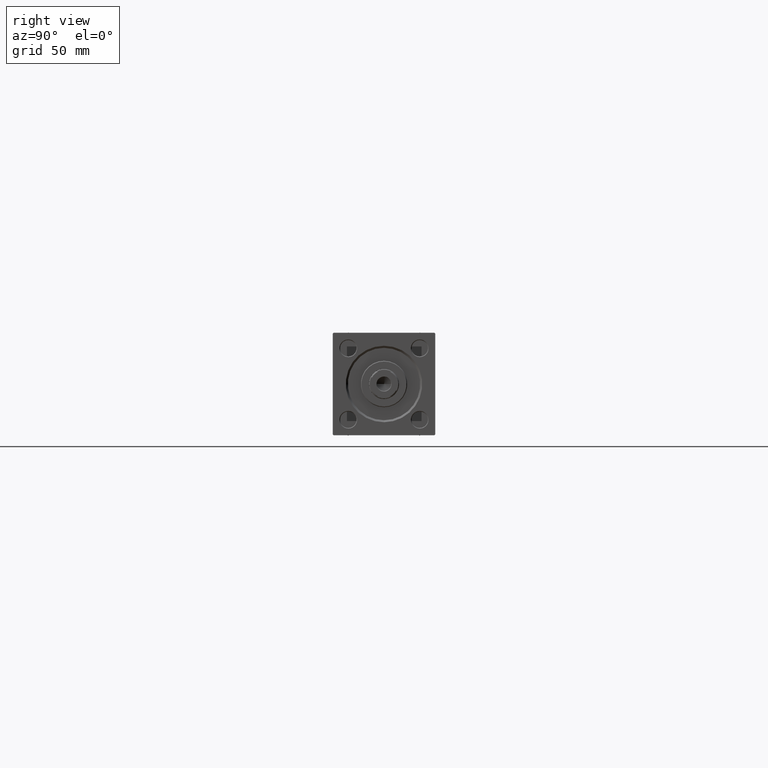
[diagram: clean part render]
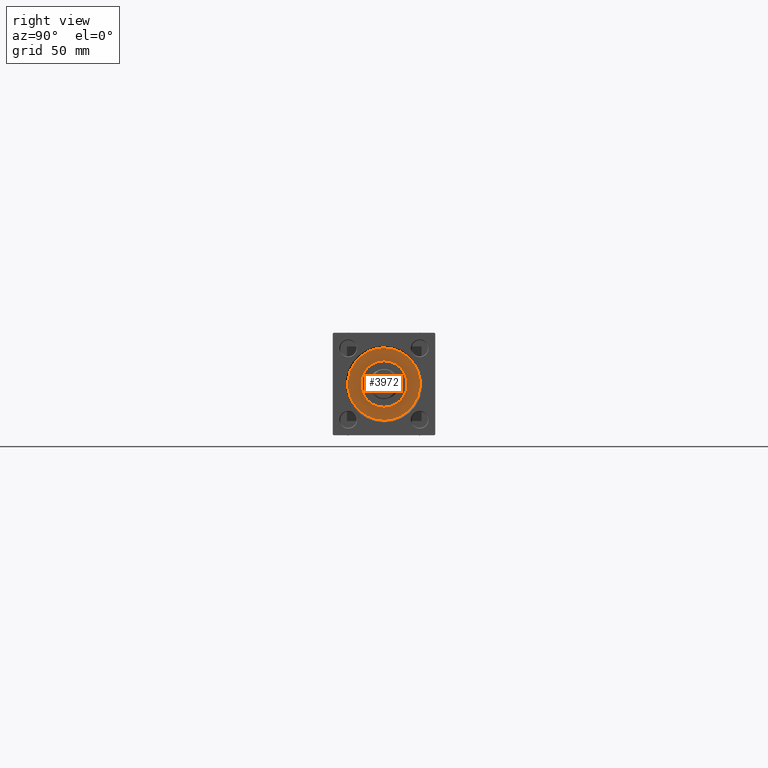
[diagram: same view with one face highlighted and labeled with its STEP entity id]
A machine part, right view. The second image highlights one B-rep face of the part: STEP entity #3972.
In plain terms, the highlighted planar face has unit normal (1, 0, 0).
Its self-contained STEP definition (entity closure, byte-faithful):
#147 = PLANE ( 'NONE',  #7513 ) ;
#3877 = CARTESIAN_POINT ( 'NONE',  ( 0.000000000000000000, 0.000000000000000000, 28.69999999999999929 ) ) ;
#3972 = ADVANCED_FACE ( 'NONE', ( #38980, #22480 ), #147, .T. ) ;
#4127 = DIRECTION ( 'NONE',  ( 1.000000000000000000, 0.000000000000000000, 0.000000000000000000 ) ) ;
#4136 = DIRECTION ( 'NONE',  ( 1.000000000000000000, 0.000000000000000000, 0.000000000000000000 ) ) ;
#4591 = CARTESIAN_POINT ( 'NONE',  ( 17.00000000000000000, 2.081899558550500280E-15, 28.69999999999999929 ) ) ;
#4836 = AXIS2_PLACEMENT_3D ( 'NONE', #20875, #44485, #36352 ) ;
#5819 = CIRCLE ( 'NONE', #14833, 17.00000000000000000 ) ;
#5870 = CARTESIAN_POINT ( 'NONE',  ( -26.50000000000000355, 0.000000000000000000, 28.69999999999999929 ) ) ;
#7513 = AXIS2_PLACEMENT_3D ( 'NONE', #26305, #34164, #42788 ) ;
#8149 = ORIENTED_EDGE ( 'NONE', *, *, #46287, .T. ) ;
#8926 = VERTEX_POINT ( 'NONE', #4591 ) ;
#9077 = CIRCLE ( 'NONE', #48791, 26.50000000000000355 ) ;
#10361 = EDGE_CURVE ( 'NONE', #8926, #48481, #21853, .T. ) ;
#12651 = DIRECTION ( 'NONE',  ( 1.000000000000000000, 0.000000000000000000, 0.000000000000000000 ) ) ;
#14608 = ORIENTED_EDGE ( 'NONE', *, *, #10361, .F. ) ;
#14833 = AXIS2_PLACEMENT_3D ( 'NONE', #3877, #38132, #4127 ) ;
#15972 = EDGE_LOOP ( 'NONE', ( #8149, #42159 ) ) ;
#17134 = CARTESIAN_POINT ( 'NONE',  ( -17.00000000000000000, 0.000000000000000000, 28.69999999999999929 ) ) ;
#17362 = CARTESIAN_POINT ( 'NONE',  ( 26.50000000000000355, 3.245314017740486554E-15, 28.69999999999999929 ) ) ;
#18463 = EDGE_CURVE ( 'NONE', #48481, #8926, #5819, .T. ) ;
#19682 = EDGE_LOOP ( 'NONE', ( #43265, #14608 ) ) ;
#19816 = EDGE_CURVE ( 'NONE', #25723, #29737, #9077, .T. ) ;
#20510 = CARTESIAN_POINT ( 'NONE',  ( 0.000000000000000000, 0.000000000000000000, 28.69999999999999929 ) ) ;
#20875 = CARTESIAN_POINT ( 'NONE',  ( 0.000000000000000000, 0.000000000000000000, 28.69999999999999929 ) ) ;
#21853 = CIRCLE ( 'NONE', #4836, 17.00000000000000000 ) ;
#22480 = FACE_OUTER_BOUND ( 'NONE', #15972, .T. ) ;
#25723 = VERTEX_POINT ( 'NONE', #17362 ) ;
#26017 = AXIS2_PLACEMENT_3D ( 'NONE', #38912, #27739, #4136 ) ;
#26305 = CARTESIAN_POINT ( 'NONE',  ( 0.000000000000000000, 0.000000000000000000, 28.69999999999999929 ) ) ;
#27739 = DIRECTION ( 'NONE',  ( 0.000000000000000000, 0.000000000000000000, 1.000000000000000000 ) ) ;
#29737 = VERTEX_POINT ( 'NONE', #5870 ) ;
#34164 = DIRECTION ( 'NONE',  ( 0.000000000000000000, 0.000000000000000000, 1.000000000000000000 ) ) ;
#35726 = CIRCLE ( 'NONE', #26017, 26.50000000000000355 ) ;
#36352 = DIRECTION ( 'NONE',  ( 1.000000000000000000, 0.000000000000000000, 0.000000000000000000 ) ) ;
#38132 = DIRECTION ( 'NONE',  ( 0.000000000000000000, 0.000000000000000000, 1.000000000000000000 ) ) ;
#38912 = CARTESIAN_POINT ( 'NONE',  ( 0.000000000000000000, 0.000000000000000000, 28.69999999999999929 ) ) ;
#38980 = FACE_BOUND ( 'NONE', #19682, .T. ) ;
#42159 = ORIENTED_EDGE ( 'NONE', *, *, #19816, .T. ) ;
#42788 = DIRECTION ( 'NONE',  ( 1.000000000000000000, 0.000000000000000000, -0.000000000000000000 ) ) ;
#43265 = ORIENTED_EDGE ( 'NONE', *, *, #18463, .F. ) ;
#44485 = DIRECTION ( 'NONE',  ( 0.000000000000000000, 0.000000000000000000, 1.000000000000000000 ) ) ;
#46287 = EDGE_CURVE ( 'NONE', #29737, #25723, #35726, .T. ) ;
#47675 = DIRECTION ( 'NONE',  ( 0.000000000000000000, 0.000000000000000000, 1.000000000000000000 ) ) ;
#48481 = VERTEX_POINT ( 'NONE', #17134 ) ;
#48791 = AXIS2_PLACEMENT_3D ( 'NONE', #20510, #47675, #12651 ) ;